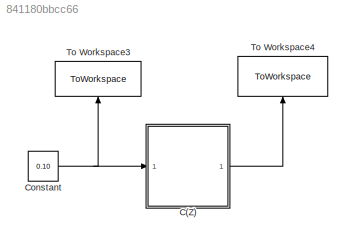
MODEL slx_841180bbcc66
KIND model
CONFIG AbsTol = auto
CONFIG EnableMultiTasking = off
CONFIG FixedStep = auto
CONFIG MaxStep = auto
CONFIG MinStep = auto
CONFIG RelTol = 1e-3
CONFIG SampleTimeConstraint = Unconstrained
CONFIG Solver = VariableStepAuto
CONFIG SolverName = VariableStepAuto
CONFIG StartTime = 0.0
CONFIG StopTime = tfinal
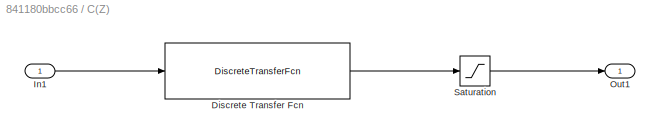
BLOCK [SubSystem] C(Z)
  Ports = [1, 1]
  RequestExecContextInheritance = off
BLOCK [DiscreteTransferFcn] C(Z)/Discrete Transfer Fcn
  Denominator = [2*tau4 -2*tau4]
  InputPortMap = u0
  Numerator = [Te+2*tau3 Te-2*tau3]
  Ports = [1, 1]
  SampleTime = Te
BLOCK [Inport] C(Z)/In1
BLOCK [Outport] C(Z)/Out1
BLOCK [Saturate] C(Z)/Saturation
  LowerLimit = -0.45
  UpperLimit = 0.45
BLOCK [Constant] Constant
  Value = 0.10
BLOCK [ToWorkspace] To Workspace3
  FixptAsFi = on
  MaxDataPoints = inf
  NameLocation = right
  Ports = [1]
  SampleTime = -1
  SaveFormat = Timeseries
  VariableName = Erreur
BLOCK [ToWorkspace] To Workspace4
  FixptAsFi = on
  MaxDataPoints = inf
  NameLocation = right
  Ports = [1]
  SampleTime = -1
  SaveFormat = Timeseries
  VariableName = sigma
LINE C(Z)/Discrete Transfer Fcn:1 -> C(Z)/Saturation:1
LINE C(Z)/In1:1 -> C(Z)/Discrete Transfer Fcn:1
LINE C(Z)/Saturation:1 -> C(Z)/Out1:1
LINE C(Z):1 -> To Workspace4:1
NET Constant:1 -> C(Z):1, To Workspace3:1
note: NET lines group one-source signal fan-out (src -> all destinations, sorted); 1:1 wires keep LINE
